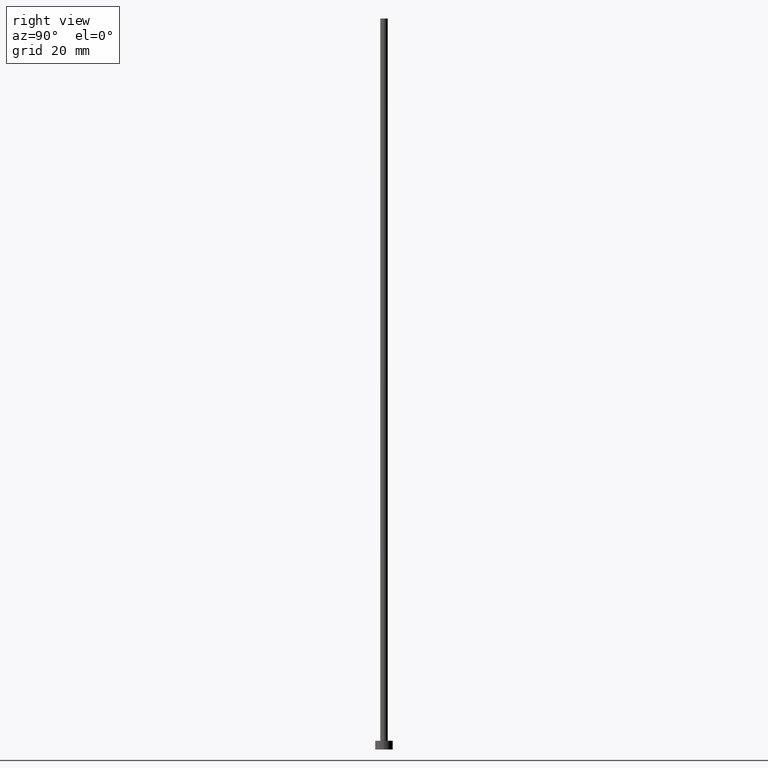
[diagram: clean part render]
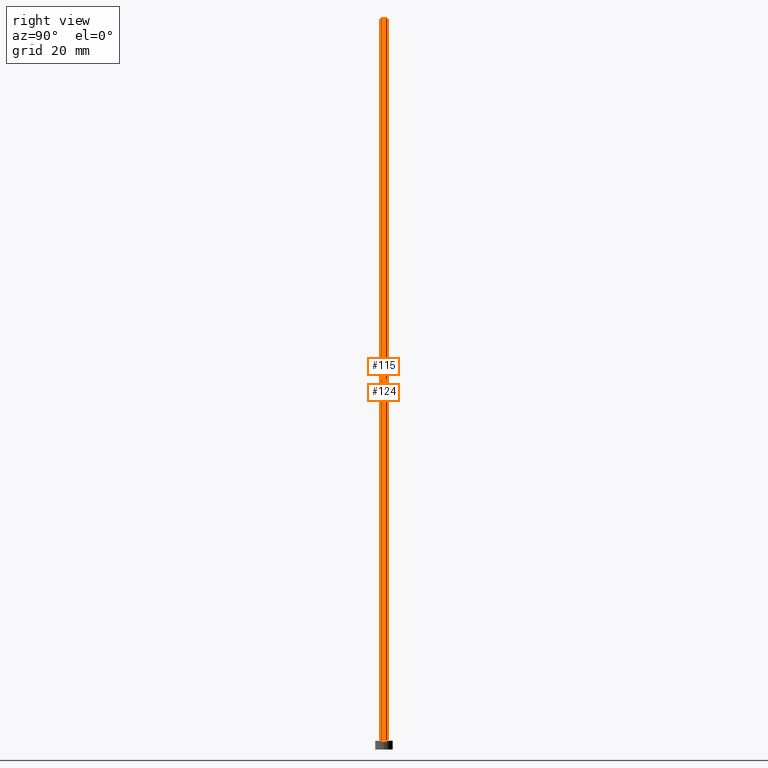
[diagram: same view with one multi-face feature highlighted, each face labeled with its STEP entity id]
A machine part, right view. The highlighted faces form ONE feature: a constant-radius fillet chain: 2 tangent blend faces with common blend radius 0.65 mm. The faces share edges in the B-rep.
Their STEP definitions:
[1] entity #115 (Cylinder):
#2 = AXIS2_PLACEMENT_3D ( 'NONE', #20, #41, #117 ) ;
#5 = DIRECTION ( 'NONE',  ( -0.000000000000000000, -0.000000000000000000, -1.000000000000000000 ) ) ;
#6 = CARTESIAN_POINT ( 'NONE',  ( 0.000000000000000000, 0.000000000000000000, 125.0000000000000000 ) ) ;
#20 = CARTESIAN_POINT ( 'NONE',  ( 0.000000000000000000, 0.000000000000000000, 125.0000000000000000 ) ) ;
#25 = CARTESIAN_POINT ( 'NONE',  ( 0.6500000000000000222, 7.960204194457795477E-17, 1.500000000000000000 ) ) ;
#40 = VECTOR ( 'NONE', #47, 1000.000000000000000 ) ;
#41 = DIRECTION ( 'NONE',  ( 0.000000000000000000, 0.000000000000000000, 1.000000000000000000 ) ) ;
#46 = CARTESIAN_POINT ( 'NONE',  ( -0.6500000000000000222, 0.000000000000000000, 1.500000000000000000 ) ) ;
#47 = DIRECTION ( 'NONE',  ( -0.000000000000000000, -0.000000000000000000, -1.000000000000000000 ) ) ;
#55 = EDGE_CURVE ( 'NONE', #118, #79, #197, .T. ) ;
#58 = EDGE_LOOP ( 'NONE', ( #155, #84, #93, #119 ) ) ;
#60 = DIRECTION ( 'NONE',  ( 0.000000000000000000, 0.000000000000000000, 1.000000000000000000 ) ) ;
#65 = CARTESIAN_POINT ( 'NONE',  ( -0.6500000000000000222, 0.000000000000000000, 125.0000000000000000 ) ) ;
#67 = CARTESIAN_POINT ( 'NONE',  ( -0.6500000000000000222, 0.000000000000000000, 125.0000000000000000 ) ) ;
#69 = LINE ( 'NONE', #243, #40 ) ;
#71 = EDGE_CURVE ( 'NONE', #236, #140, #168, .T. ) ;
#79 = VERTEX_POINT ( 'NONE', #25 ) ;
#84 = ORIENTED_EDGE ( 'NONE', *, *, #71, .F. ) ;
#93 = ORIENTED_EDGE ( 'NONE', *, *, #215, .T. ) ;
#100 = FACE_OUTER_BOUND ( 'NONE', #58, .T. ) ;
#107 = DIRECTION ( 'NONE',  ( -0.000000000000000000, -0.000000000000000000, -1.000000000000000000 ) ) ;
#115 = ADVANCED_FACE ( 'NONE', ( #100 ), #179, .T. ) ;
#117 = DIRECTION ( 'NONE',  ( 1.000000000000000000, 0.000000000000000000, 0.000000000000000000 ) ) ;
#118 = VERTEX_POINT ( 'NONE', #46 ) ;
#119 = ORIENTED_EDGE ( 'NONE', *, *, #55, .T. ) ;
#140 = VERTEX_POINT ( 'NONE', #220 ) ;
#142 = AXIS2_PLACEMENT_3D ( 'NONE', #195, #60, #255 ) ;
#147 = LINE ( 'NONE', #67, #172 ) ;
#155 = ORIENTED_EDGE ( 'NONE', *, *, #174, .F. ) ;
#168 = CIRCLE ( 'NONE', #2, 0.6500000000000000222 ) ;
#172 = VECTOR ( 'NONE', #107, 1000.000000000000000 ) ;
#174 = EDGE_CURVE ( 'NONE', #140, #79, #69, .T. ) ;
#179 = CYLINDRICAL_SURFACE ( 'NONE', #231, 0.6500000000000000222 ) ;
#195 = CARTESIAN_POINT ( 'NONE',  ( 0.000000000000000000, 0.000000000000000000, 1.500000000000000000 ) ) ;
#197 = CIRCLE ( 'NONE', #142, 0.6500000000000000222 ) ;
#215 = EDGE_CURVE ( 'NONE', #236, #118, #147, .T. ) ;
#220 = CARTESIAN_POINT ( 'NONE',  ( 0.6500000000000000222, 7.960204194457795477E-17, 125.0000000000000000 ) ) ;
#231 = AXIS2_PLACEMENT_3D ( 'NONE', #6, #5, #240 ) ;
#236 = VERTEX_POINT ( 'NONE', #65 ) ;
#240 = DIRECTION ( 'NONE',  ( -1.000000000000000000, 0.000000000000000000, 0.000000000000000000 ) ) ;
#243 = CARTESIAN_POINT ( 'NONE',  ( 0.6500000000000000222, 7.960204194457795477E-17, 125.0000000000000000 ) ) ;
#255 = DIRECTION ( 'NONE',  ( 1.000000000000000000, 0.000000000000000000, 0.000000000000000000 ) ) ;
[2] entity #124 (Cylinder):
#1 = CARTESIAN_POINT ( 'NONE',  ( 0.000000000000000000, 0.000000000000000000, 125.0000000000000000 ) ) ;
#8 = CARTESIAN_POINT ( 'NONE',  ( 0.000000000000000000, 0.000000000000000000, 1.500000000000000000 ) ) ;
#12 = AXIS2_PLACEMENT_3D ( 'NONE', #8, #127, #103 ) ;
#16 = EDGE_LOOP ( 'NONE', ( #130, #95, #161, #251 ) ) ;
#17 = CARTESIAN_POINT ( 'NONE',  ( 0.000000000000000000, 0.000000000000000000, 125.0000000000000000 ) ) ;
#25 = CARTESIAN_POINT ( 'NONE',  ( 0.6500000000000000222, 7.960204194457795477E-17, 1.500000000000000000 ) ) ;
#40 = VECTOR ( 'NONE', #47, 1000.000000000000000 ) ;
#46 = CARTESIAN_POINT ( 'NONE',  ( -0.6500000000000000222, 0.000000000000000000, 1.500000000000000000 ) ) ;
#47 = DIRECTION ( 'NONE',  ( -0.000000000000000000, -0.000000000000000000, -1.000000000000000000 ) ) ;
#54 = AXIS2_PLACEMENT_3D ( 'NONE', #1, #81, #101 ) ;
#65 = CARTESIAN_POINT ( 'NONE',  ( -0.6500000000000000222, 0.000000000000000000, 125.0000000000000000 ) ) ;
#67 = CARTESIAN_POINT ( 'NONE',  ( -0.6500000000000000222, 0.000000000000000000, 125.0000000000000000 ) ) ;
#69 = LINE ( 'NONE', #243, #40 ) ;
#79 = VERTEX_POINT ( 'NONE', #25 ) ;
#81 = DIRECTION ( 'NONE',  ( 0.000000000000000000, 0.000000000000000000, 1.000000000000000000 ) ) ;
#85 = FACE_OUTER_BOUND ( 'NONE', #16, .T. ) ;
#95 = ORIENTED_EDGE ( 'NONE', *, *, #174, .T. ) ;
#101 = DIRECTION ( 'NONE',  ( 1.000000000000000000, 0.000000000000000000, 0.000000000000000000 ) ) ;
#103 = DIRECTION ( 'NONE',  ( 1.000000000000000000, 0.000000000000000000, 0.000000000000000000 ) ) ;
#107 = DIRECTION ( 'NONE',  ( -0.000000000000000000, -0.000000000000000000, -1.000000000000000000 ) ) ;
#112 = EDGE_CURVE ( 'NONE', #140, #236, #131, .T. ) ;
#118 = VERTEX_POINT ( 'NONE', #46 ) ;
#122 = CYLINDRICAL_SURFACE ( 'NONE', #152, 0.6500000000000000222 ) ;
#123 = DIRECTION ( 'NONE',  ( -0.000000000000000000, -0.000000000000000000, -1.000000000000000000 ) ) ;
#124 = ADVANCED_FACE ( 'NONE', ( #85 ), #122, .T. ) ;
#127 = DIRECTION ( 'NONE',  ( 0.000000000000000000, 0.000000000000000000, 1.000000000000000000 ) ) ;
#130 = ORIENTED_EDGE ( 'NONE', *, *, #112, .F. ) ;
#131 = CIRCLE ( 'NONE', #54, 0.6500000000000000222 ) ;
#139 = CIRCLE ( 'NONE', #12, 0.6500000000000000222 ) ;
#140 = VERTEX_POINT ( 'NONE', #220 ) ;
#147 = LINE ( 'NONE', #67, #172 ) ;
#152 = AXIS2_PLACEMENT_3D ( 'NONE', #17, #123, #167 ) ;
#161 = ORIENTED_EDGE ( 'NONE', *, *, #169, .T. ) ;
#167 = DIRECTION ( 'NONE',  ( -1.000000000000000000, 0.000000000000000000, 0.000000000000000000 ) ) ;
#169 = EDGE_CURVE ( 'NONE', #79, #118, #139, .T. ) ;
#172 = VECTOR ( 'NONE', #107, 1000.000000000000000 ) ;
#174 = EDGE_CURVE ( 'NONE', #140, #79, #69, .T. ) ;
#215 = EDGE_CURVE ( 'NONE', #236, #118, #147, .T. ) ;
#220 = CARTESIAN_POINT ( 'NONE',  ( 0.6500000000000000222, 7.960204194457795477E-17, 125.0000000000000000 ) ) ;
#236 = VERTEX_POINT ( 'NONE', #65 ) ;
#243 = CARTESIAN_POINT ( 'NONE',  ( 0.6500000000000000222, 7.960204194457795477E-17, 125.0000000000000000 ) ) ;
#251 = ORIENTED_EDGE ( 'NONE', *, *, #215, .F. ) ;